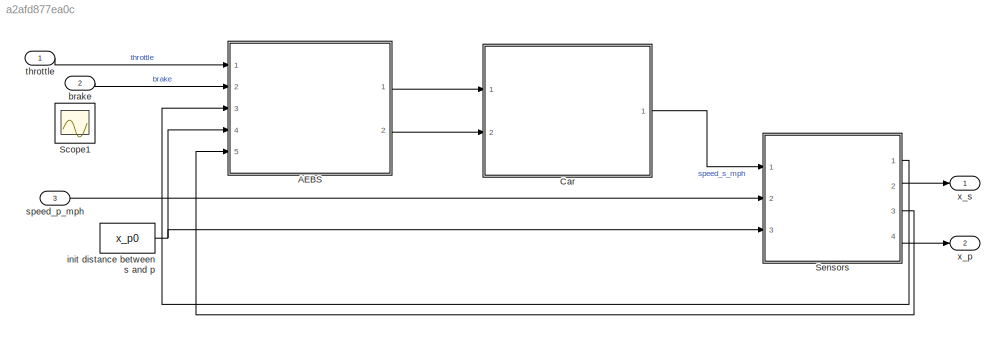
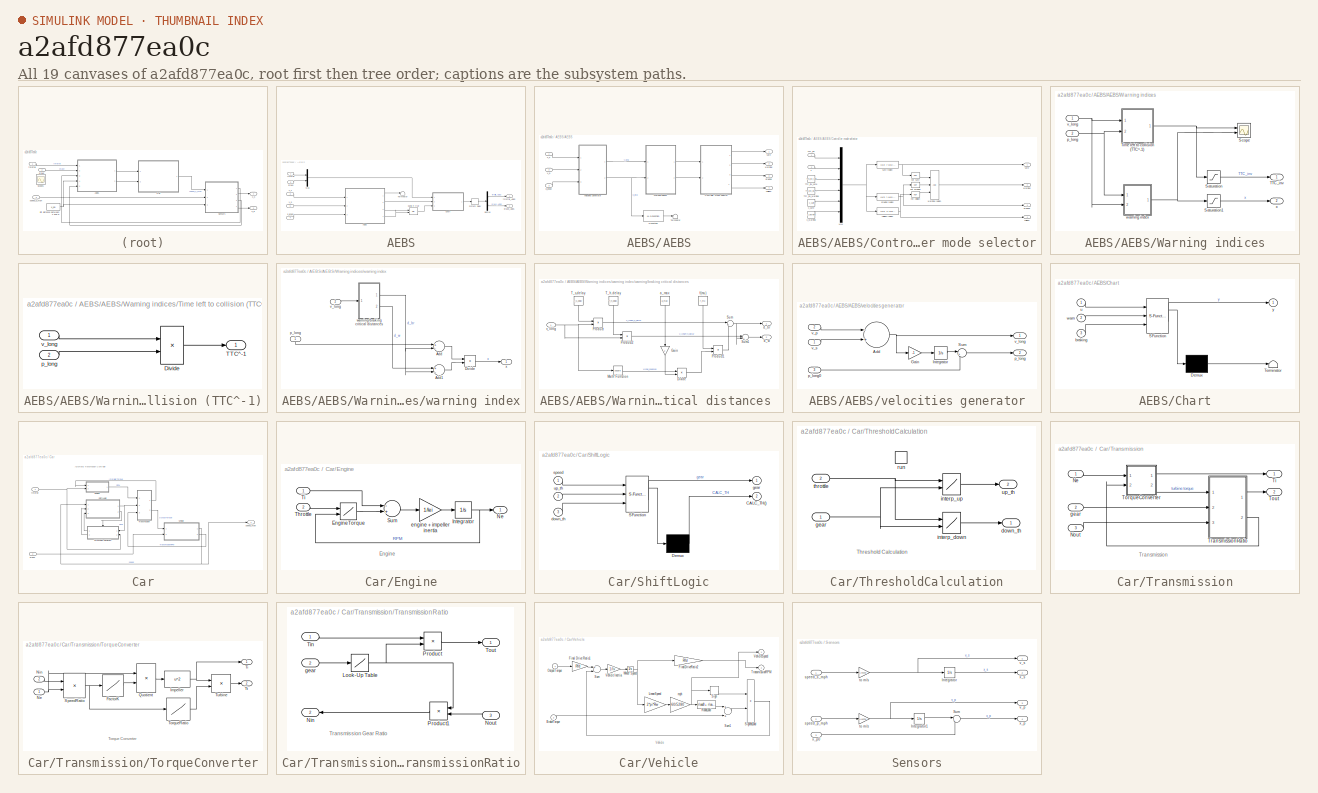
[diagram: thumbnail index - all 19 canvases of the model, root first then tree order]
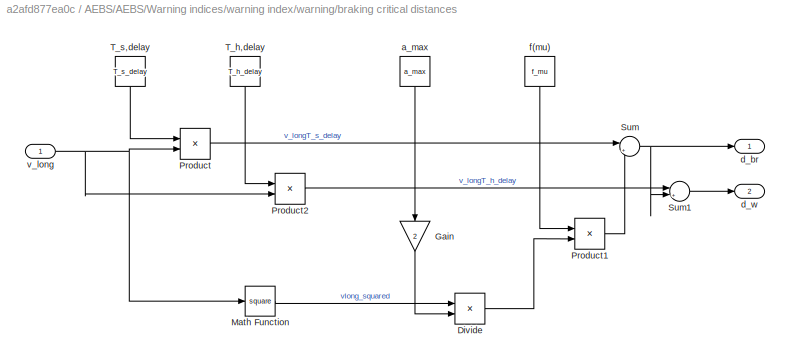
MODEL slx_a2afd877ea0c
KIND model
CONFIG AbsTol = 1e-6
CONFIG EnableMultiTasking = off
CONFIG FixedStep = .01
CONFIG MaxStep = auto
CONFIG MinStep = auto
CONFIG RelTol = 1e-3
CONFIG SampleTimeConstraint = Unconstrained
CONFIG Solver = ode5
CONFIG SolverName = ode5
CONFIG StartTime = 0.0
CONFIG StopTime = 20
WORKSPACE source: MATLAB code (in-file)
WORKSPACE code: load sldemo_autotrans_data; %load initial conditions and other necessary data
BLOCK [SubSystem] AEBS
  Ports = [5, 2]
  RequestExecContextInheritance = off
BLOCK [SubSystem] AEBS/AEBS
  Ports = [3, 4]
  RequestExecContextInheritance = off
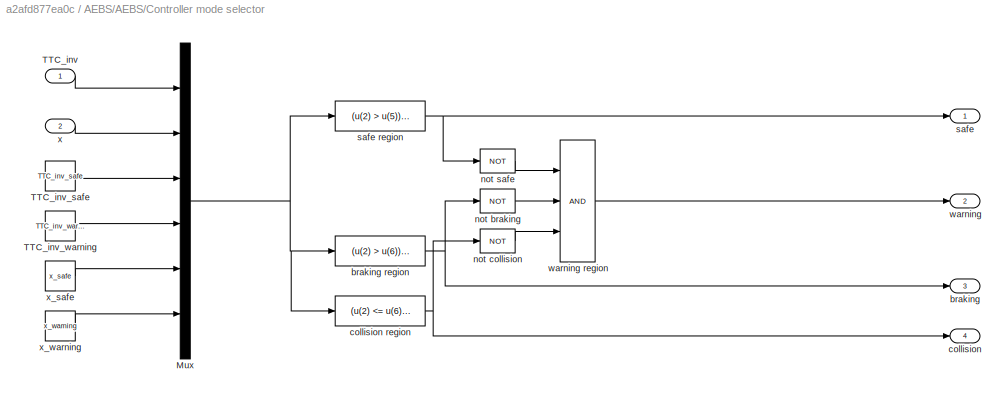
BLOCK [SubSystem] AEBS/AEBS/Controller mode selector
  Ports = [2, 4]
  RequestExecContextInheritance = off
BLOCK [Mux] AEBS/AEBS/Controller mode selector/Mux
  DisplayOption = bar
  Inputs = 6
  Ports = [6, 1]
BLOCK [Inport] AEBS/AEBS/Controller mode selector/TTC_inv
  IconDisplay = Port number
BLOCK [Constant] AEBS/AEBS/Controller mode selector/TTC_inv_safe
  Value = TTC_inv_safe
BLOCK [Constant] AEBS/AEBS/Controller mode selector/TTC_inv_warning
  Value = TTC_inv_warning
BLOCK [Outport] AEBS/AEBS/Controller mode selector/braking
  IconDisplay = Port number
  Port = 3
BLOCK [Fcn] AEBS/AEBS/Controller mode selector/braking region
  Expr = (u(2) > u(6)) && (u(1) >= u(4)) || (u(2) <= u(6)) && (u(1) < u(4))
BLOCK [Outport] AEBS/AEBS/Controller mode selector/collision
  IconDisplay = Port number
  Port = 4
BLOCK [Fcn] AEBS/AEBS/Controller mode selector/collision region
  Expr = (u(2) <= u(6)) && (u(1) >= u(4))
BLOCK [Logic] AEBS/AEBS/Controller mode selector/not braking
  AllPortsSameDT = off
  Inputs = 3
  Operator = NOT
  OutDataTypeStr = boolean
  Ports = [1, 1]
BLOCK [Logic] AEBS/AEBS/Controller mode selector/not collision
  AllPortsSameDT = off
  Inputs = 3
  Operator = NOT
  OutDataTypeStr = boolean
  Ports = [1, 1]
BLOCK [Logic] AEBS/AEBS/Controller mode selector/not safe
  AllPortsSameDT = off
  Inputs = 3
  Operator = NOT
  OutDataTypeStr = boolean
  Ports = [1, 1]
BLOCK [Outport] AEBS/AEBS/Controller mode selector/safe
  IconDisplay = Port number
BLOCK [Fcn] AEBS/AEBS/Controller mode selector/safe region
  Expr = (u(2) > u(5)) && (u(1) < u(3))
BLOCK [Outport] AEBS/AEBS/Controller mode selector/warning
  IconDisplay = Port number
  Port = 2
BLOCK [Logic] AEBS/AEBS/Controller mode selector/warning region
  AllPortsSameDT = off
  Inputs = 3
  OutDataTypeStr = boolean
  Ports = [3, 1]
BLOCK [Inport] AEBS/AEBS/Controller mode selector/x
  IconDisplay = Port number
  Port = 2
BLOCK [Constant] AEBS/AEBS/Controller mode selector/x_safe
  Value = x_safe
BLOCK [Constant] AEBS/AEBS/Controller mode selector/x_warning
  Value = x_warning
BLOCK [M-S-Function] AEBS/AEBS/S-Function
  FunctionName = outrun_anim_nn
  Parameters = 0
  Ports = [1, 1]
BLOCK [Terminator] AEBS/AEBS/Terminator
BLOCK [SubSystem] AEBS/AEBS/Warning indices
  Ports = [2, 2]
  RequestExecContextInheritance = off
BLOCK [Saturate] AEBS/AEBS/Warning indices/Saturation
  InputPortMap = u0
  LowerLimit = 0
  Ports = [1, 1]
  UpperLimit = 10
BLOCK [Saturate] AEBS/AEBS/Warning indices/Saturation1
  InputPortMap = u0
  LowerLimit = -100
  Ports = [1, 1]
  UpperLimit = 100
BLOCK [Scope] AEBS/AEBS/Warning indices/Scope
  Floating = off
  NumInputPorts = 2
  Ports = [2]
  ScopeSpecificationString = C++SS(StrPVP('Open','off'),StrPVP('TimeRange','auto'),StrPVP('TickLabels','OneTimeTick'),StrPVP('ShowLegends','off'),StrPVP('LimitDataPoints','off'),StrPVP('MaxDataPoints','5000'),StrPVP('SaveToWorkspace','off'),StrPVP('SaveName','ScopeData2'),StrPVP('YMin','-0.43546~0.71186'),StrPVP('YMax','0.0174~2.83196'),StrPVP('BlockParamSampleInput','off'),StrPVP('BlockParamSampleTime','-1'),StrPVP('ZoomMode...<+625ch>
BLOCK [Outport] AEBS/AEBS/Warning indices/TTC_inv
  IconDisplay = Port number
BLOCK [SubSystem] AEBS/AEBS/Warning indices/Time left to collision (TTC^-1)
  Ports = [2, 1]
  RequestExecContextInheritance = off
BLOCK [Product] AEBS/AEBS/Warning indices/Time left to collision (TTC^-1)/Divide
  InputSameDT = off
  Inputs = */
  OutDataTypeStr = Inherit: Inherit via internal rule
  Ports = [2, 1]
  RndMeth = Floor
  SaturateOnIntegerOverflow = off
BLOCK [Outport] AEBS/AEBS/Warning indices/Time left to collision (TTC^-1)/TTC^-1 
  IconDisplay = Port number
BLOCK [Inport] AEBS/AEBS/Warning indices/Time left to collision (TTC^-1)/p_long
  IconDisplay = Port number
  Port = 2
BLOCK [Inport] AEBS/AEBS/Warning indices/Time left to collision (TTC^-1)/v_long
  IconDisplay = Port number
BLOCK [Inport] AEBS/AEBS/Warning indices/p_long
  IconDisplay = Port number
  Port = 2
BLOCK [Inport] AEBS/AEBS/Warning indices/v_long
  IconDisplay = Port number
BLOCK [SubSystem] AEBS/AEBS/Warning indices/warning index
  Ports = [2, 1]
  RequestExecContextInheritance = off
BLOCK [Sum] AEBS/AEBS/Warning indices/warning index/Add
  InputSameDT = off
  Inputs = +-
  OutDataTypeStr = Inherit: Inherit via internal rule
  Ports = [2, 1]
  SaturateOnIntegerOverflow = off
BLOCK [Sum] AEBS/AEBS/Warning indices/warning index/Add1
  InputSameDT = off
  Inputs = +-
  OutDataTypeStr = Inherit: Inherit via internal rule
  Ports = [2, 1]
  SaturateOnIntegerOverflow = off
BLOCK [Product] AEBS/AEBS/Warning indices/warning index/Divide
  InputSameDT = off
  Inputs = */
  OutDataTypeStr = Inherit: Inherit via internal rule
  Ports = [2, 1]
  RndMeth = Floor
  SaturateOnIntegerOverflow = off
BLOCK [Inport] AEBS/AEBS/Warning indices/warning index/p_long
  IconDisplay = Port number
BLOCK [Inport] AEBS/AEBS/Warning indices/warning index/v_long
  IconDisplay = Port number
  Port = 2
BLOCK [SubSystem] AEBS/AEBS/Warning indices/warning index/warning//braking critical distances 
  Ports = [1, 2]
  RequestExecContextInheritance = off
BLOCK [Product] AEBS/AEBS/Warning indices/warning index/warning//braking critical distances /Divide
  InputSameDT = off
  Inputs = */
  OutDataTypeStr = Inherit: Inherit via internal rule
  Ports = [2, 1]
  RndMeth = Floor
  SaturateOnIntegerOverflow = off
BLOCK [Gain] AEBS/AEBS/Warning indices/warning index/warning//braking critical distances /Gain
  Gain = 2
  OutDataTypeStr = Inherit: Inherit via internal rule
  ParamDataTypeStr = Inherit: Inherit via internal rule
  SaturateOnIntegerOverflow = off
BLOCK [Math] AEBS/AEBS/Warning indices/warning index/warning//braking critical distances /Math Function
  Operator = square
  Ports = [1, 1]
BLOCK [Product] AEBS/AEBS/Warning indices/warning index/warning//braking critical distances /Product
  InputSameDT = off
  OutDataTypeStr = Inherit: Inherit via internal rule
  Ports = [2, 1]
  RndMeth = Floor
  SaturateOnIntegerOverflow = off
BLOCK [Product] AEBS/AEBS/Warning indices/warning index/warning//braking critical distances /Product1
  InputSameDT = off
  OutDataTypeStr = Inherit: Inherit via internal rule
  Ports = [2, 1]
  RndMeth = Floor
  SaturateOnIntegerOverflow = off
BLOCK [Product] AEBS/AEBS/Warning indices/warning index/warning//braking critical distances /Product2
  InputSameDT = off
  OutDataTypeStr = Inherit: Inherit via internal rule
  Ports = [2, 1]
  RndMeth = Floor
  SaturateOnIntegerOverflow = off
BLOCK [Sum] AEBS/AEBS/Warning indices/warning index/warning//braking critical distances /Sum
  IconShape = round
  InputSameDT = off
  Inputs = |++
  OutDataTypeStr = Inherit: Inherit via internal rule
  Ports = [2, 1]
  SaturateOnIntegerOverflow = off
BLOCK [Sum] AEBS/AEBS/Warning indices/warning index/warning//braking critical distances /Sum1
  IconShape = round
  InputSameDT = off
  Inputs = |++
  OutDataTypeStr = Inherit: Inherit via internal rule
  Ports = [2, 1]
  SaturateOnIntegerOverflow = off
BLOCK [Constant] AEBS/AEBS/Warning indices/warning index/warning//braking critical distances /T_h,delay
  Value = T_h_delay
BLOCK [Constant] AEBS/AEBS/Warning indices/warning index/warning//braking critical distances /T_s,delay
  Value = T_s_delay
BLOCK [Constant] AEBS/AEBS/Warning indices/warning index/warning//braking critical distances /a_max
  Value = a_max
BLOCK [Outport] AEBS/AEBS/Warning indices/warning index/warning//braking critical distances /d_br
  IconDisplay = Port number
BLOCK [Outport] AEBS/AEBS/Warning indices/warning index/warning//braking critical distances /d_w
  IconDisplay = Port number
  Port = 2
BLOCK [Constant] AEBS/AEBS/Warning indices/warning index/warning//braking critical distances /f(mu)
  Value = f_mu
BLOCK [Inport] AEBS/AEBS/Warning indices/warning index/warning//braking critical distances /v_long 
  IconDisplay = Port number
BLOCK [Outport] AEBS/AEBS/Warning indices/warning index/x 
  IconDisplay = Port number
BLOCK [Outport] AEBS/AEBS/Warning indices/x
  IconDisplay = Port number
  Port = 2
BLOCK [Outport] AEBS/AEBS/braking
  IconDisplay = Port number
  Port = 3
BLOCK [Outport] AEBS/AEBS/collision
  IconDisplay = Port number
  Port = 4
BLOCK [Inport] AEBS/AEBS/p_long0
  IconDisplay = Port number
  Port = 3
BLOCK [Outport] AEBS/AEBS/safe
  IconDisplay = Port number
BLOCK [Inport] AEBS/AEBS/v_p
  IconDisplay = Port number
  Port = 2
BLOCK [Inport] AEBS/AEBS/v_s
  IconDisplay = Port number
BLOCK [SubSystem] AEBS/AEBS/velocities generator
  Ports = [3, 2]
  RequestExecContextInheritance = off
BLOCK [Sum] AEBS/AEBS/velocities generator/Add
  InputSameDT = off
  Inputs = -+
  OutDataTypeStr = Inherit: Inherit via internal rule
  Ports = [2, 1]
  SaturateOnIntegerOverflow = off
BLOCK [Gain] AEBS/AEBS/velocities generator/Gain
  Gain = -1
  OutDataTypeStr = Inherit: Inherit via internal rule
  ParamDataTypeStr = Inherit: Inherit via internal rule
  SaturateOnIntegerOverflow = off
BLOCK [Integrator] AEBS/AEBS/velocities generator/Integrator
  Ports = [1, 1]
BLOCK [Sum] AEBS/AEBS/velocities generator/Sum
  IconShape = round
  InputSameDT = off
  Inputs = |++
  OutDataTypeStr = Inherit: Inherit via internal rule
  Ports = [2, 1]
  SaturateOnIntegerOverflow = off
BLOCK [Outport] AEBS/AEBS/velocities generator/p_long
  IconDisplay = Port number
  Port = 2
BLOCK [Inport] AEBS/AEBS/velocities generator/p_long0
  IconDisplay = Port number
  Port = 3
BLOCK [Outport] AEBS/AEBS/velocities generator/v_long
  IconDisplay = Port number
BLOCK [Inport] AEBS/AEBS/velocities generator/v_p
  IconDisplay = Port number
  Port = 2
BLOCK [Inport] AEBS/AEBS/velocities generator/v_s
  IconDisplay = Port number
BLOCK [Outport] AEBS/AEBS/warning
  IconDisplay = Port number
  Port = 2
BLOCK [SubSystem] AEBS/Chart
  ErrorFcn = Stateflow.Translate.translate
  PermitHierarchicalResolution = ExplicitOnly
  Ports = [3, 1]
  RequestExecContextInheritance = off
  SFBlockType = Chart
  TreatAsAtomicUnit = on
BLOCK [Demux] AEBS/Chart/ Demux 
  Outputs = 1
  Ports = [1, 1]
BLOCK [S-Function] AEBS/Chart/ SFunction 
  EnableBusSupport = off
  FunctionName = sf_sfun
  Parameters = panic_brake,warn_brake
  PortCounts = [3 2]
  Ports = [3, 2]
  SFcnIsStateOwnerBlock = off
  SFunctionDeploymentMode = off
  Tag = Stateflow S-Function outrun_nn_breach 3
BLOCK [Terminator] AEBS/Chart/ Terminator 
BLOCK [Inport] AEBS/Chart/braking
  IconDisplay = Port number
  Port = 3
BLOCK [Inport] AEBS/Chart/u
  IconDisplay = Port number
BLOCK [Inport] AEBS/Chart/warn
  IconDisplay = Port number
  Port = 2
BLOCK [Outport] AEBS/Chart/y
  IconDisplay = Port number
BLOCK [Demux] AEBS/Demux
  DisplayOption = bar
  Outputs = 2
  Ports = [1, 2]
BLOCK [Mux] AEBS/Mux
  DisplayOption = bar
  Inputs = 2
  Ports = [2, 1]
BLOCK [TransportDelay] AEBS/System Delay 
  DelayTime = T_s_delay
  Ports = [1, 1]
BLOCK [Terminator] AEBS/Terminator
BLOCK [Inport] AEBS/brake
  IconDisplay = Port number
  Port = 2
BLOCK [Outport] AEBS/brake_AEBS
  IconDisplay = Port number
  Port = 2
BLOCK [Inport] AEBS/p_long0
  IconDisplay = Port number
  Port = 4
BLOCK [Logic] AEBS/panic if true
  AllPortsSameDT = off
  IconShape = distinctive
  Operator = OR
  OutDataTypeStr = boolean
  Ports = [2, 1]
BLOCK [Inport] AEBS/throttle
  IconDisplay = Port number
BLOCK [Outport] AEBS/throttle_AEBS
  IconDisplay = Port number
BLOCK [Inport] AEBS/v_p
  IconDisplay = Port number
  Port = 5
BLOCK [Inport] AEBS/v_s
  IconDisplay = Port number
  Port = 3
BLOCK [SubSystem] Car
  Ports = [2, 1]
  RequestExecContextInheritance = off
BLOCK [SubSystem] Car/Engine
  Ports = [2, 1]
  RequestExecContextInheritance = off
BLOCK [Lookup2D] Car/Engine/EngineTorque
  ColumnIndex = nevec
  RowIndex = thvec
  SaturateOnIntegerOverflow = off
  Table = emap
BLOCK [Integrator] Car/Engine/Integrator
  InitialCondition = 1000
  LimitOutput = on
  LowerSaturationLimit = 600
  Ports = [1, 1]
  UpperSaturationLimit = 6000
  ZeroCross = off
BLOCK [Outport] Car/Engine/Ne
  IconDisplay = Port number
  InitialOutput = 0
BLOCK [Sum] Car/Engine/Sum
  Inputs = -+
  Ports = [2, 1]
BLOCK [Inport] Car/Engine/Throttle
  IconDisplay = Port number
  Port = 2
BLOCK [Inport] Car/Engine/Ti
  IconDisplay = Port number
BLOCK [Gain] Car/Engine/engine + impeller inertia
  Gain = 1/Iei
BLOCK [SubSystem] Car/ShiftLogic
  ErrorFcn = Stateflow.Translate.translate
  PermitHierarchicalResolution = ExplicitOnly
  Ports = [3, 2]
  RequestExecContextInheritance = off
  SFBlockType = Chart
  TreatAsAtomicUnit = on
BLOCK [Demux] Car/ShiftLogic/ Demux 
  Outputs = 1
  Ports = [1, 1]
BLOCK [S-Function] Car/ShiftLogic/ SFunction 
  EnableBusSupport = off
  FunctionName = sf_sfun
  Parameters = TWAIT
  PortCounts = [3 2]
  Ports = [3, 2]
  SFcnIsStateOwnerBlock = off
  SFunctionDeploymentMode = off
  Tag = Stateflow S-Function outrun_nn_breach 1
BLOCK [Outport] Car/ShiftLogic/CALC_TH()
  IconDisplay = Port number
  Port = 2
BLOCK [Inport] Car/ShiftLogic/down_th
  IconDisplay = Port number
  Port = 3
BLOCK [Outport] Car/ShiftLogic/gear
  IconDisplay = Port number
BLOCK [Inport] Car/ShiftLogic/speed
  IconDisplay = Port number
BLOCK [Inport] Car/ShiftLogic/up_th
  IconDisplay = Port number
  Port = 2
BLOCK [SubSystem] Car/ThresholdCalculation
  Ports = [2, 2, 0, 1]
  RequestExecContextInheritance = off
  TreatAsAtomicUnit = on
BLOCK [Outport] Car/ThresholdCalculation/down_th
  IconDisplay = Port number
BLOCK [Inport] Car/ThresholdCalculation/gear
  IconDisplay = Port number
BLOCK [Lookup2D] Car/ThresholdCalculation/interp_down
  ColumnIndex = [1:4]
  InputSameDT = off
  LockScale = on
  OutDataTypeStr = double
  RowIndex = downth
  SaturateOnIntegerOverflow = off
  Table = downtab
BLOCK [Lookup2D] Car/ThresholdCalculation/interp_up
  ColumnIndex = [1:4]
  InputSameDT = off
  LockScale = on
  OutDataTypeStr = double
  RowIndex = upth
  SaturateOnIntegerOverflow = off
  Table = uptab
BLOCK [TriggerPort] Car/ThresholdCalculation/run
  Ports = []
  TriggerType = function-call
  VariantControl = Variant
  ZeroCross = off
BLOCK [Inport] Car/ThresholdCalculation/throttle
  IconDisplay = Port number
  Port = 2
BLOCK [Outport] Car/ThresholdCalculation/up_th
  IconDisplay = Port number
  Port = 2
BLOCK [SubSystem] Car/Transmission
  Ports = [3, 2]
  RequestExecContextInheritance = off
BLOCK [Inport] Car/Transmission/Ne
  IconDisplay = Port number
BLOCK [Inport] Car/Transmission/Nout
  IconDisplay = Port number
  Port = 3
BLOCK [Outport] Car/Transmission/Ti
  IconDisplay = Port number
  InitialOutput = 0
BLOCK [SubSystem] Car/Transmission/TorqueConverter
  Ports = [2, 2]
  RequestExecContextInheritance = off
  ShowPortLabels = none
BLOCK [Lookup] Car/Transmission/TorqueConverter/FactorK
  InputValues = speedratio
  Table = Kfactor
BLOCK [Fcn] Car/Transmission/TorqueConverter/Impeller
  Expr = u^2
BLOCK [Inport] Car/Transmission/TorqueConverter/Ne
  IconDisplay = Port number
BLOCK [Inport] Car/Transmission/TorqueConverter/Nin
  IconDisplay = Port number
  Port = 2
BLOCK [Product] Car/Transmission/TorqueConverter/Quotient
  Inputs = */
  Ports = [2, 1]
  RndMeth = Floor
BLOCK [Product] Car/Transmission/TorqueConverter/SpeedRatio
  Inputs = */
  Ports = [2, 1]
  RndMeth = Floor
BLOCK [Outport] Car/Transmission/TorqueConverter/Ti
  IconDisplay = Port number
  InitialOutput = 0
BLOCK [Lookup] Car/Transmission/TorqueConverter/TorqueRatio
  InputValues = speedratio
  Table = Torkratio
BLOCK [Outport] Car/Transmission/TorqueConverter/Tt
  IconDisplay = Port number
  InitialOutput = 0
  Port = 2
BLOCK [Product] Car/Transmission/TorqueConverter/Turbine
  Ports = [2, 1]
  RndMeth = Floor
BLOCK [Outport] Car/Transmission/Tout
  IconDisplay = Port number
  InitialOutput = 0
  Port = 2
BLOCK [SubSystem] Car/Transmission/TransmissionRatio
  Ports = [3, 2]
  RequestExecContextInheritance = off
BLOCK [Lookup] Car/Transmission/TransmissionRatio/Look-Up Table
  InputValues = [1 2 3 4]
  LockScale = on
  OutDataTypeStr = double
  Table = [2.393 1.450 1.000 0.677]
BLOCK [Outport] Car/Transmission/TransmissionRatio/Nin
  IconDisplay = Port number
  InitialOutput = 0
  Port = 2
BLOCK [Inport] Car/Transmission/TransmissionRatio/Nout
  IconDisplay = Port number
  Port = 3
BLOCK [Product] Car/Transmission/TransmissionRatio/Product
  Ports = [2, 1]
  RndMeth = Floor
BLOCK [Product] Car/Transmission/TransmissionRatio/Product1
  Ports = [2, 1]
  RndMeth = Floor
BLOCK [Inport] Car/Transmission/TransmissionRatio/Tin
  IconDisplay = Port number
BLOCK [Outport] Car/Transmission/TransmissionRatio/Tout
  IconDisplay = Port number
  InitialOutput = 0
BLOCK [Inport] Car/Transmission/TransmissionRatio/gear
  IconDisplay = Port number
  Port = 2
BLOCK [Inport] Car/Transmission/gear
  IconDisplay = Port number
  Port = 2
BLOCK [SubSystem] Car/Vehicle
  Ports = [2, 2]
  RequestExecContextInheritance = off
  ShowPortLabels = none
BLOCK [Inport] Car/Vehicle/BrakeTorque
  IconDisplay = Port number
  Port = 2
BLOCK [Gain] Car/Vehicle/Final Drive Ratio1
  Gain = Rfd
BLOCK [Gain] Car/Vehicle/FinalDriveRatio2
  Gain = Rfd
BLOCK [Gain] Car/Vehicle/LinearSpeed
  Gain = 2*pi*Rw
BLOCK [Inport] Car/Vehicle/OutputTorque
  IconDisplay = Port number
BLOCK [Fcn] Car/Vehicle/RoadLoad
  Expr = rload0 + rload2*u^2
BLOCK [Signum] Car/Vehicle/Sign
BLOCK [Product] Car/Vehicle/SignedLoad
  Ports = [2, 1]
  RndMeth = Floor
BLOCK [Sum] Car/Vehicle/Sum
  Inputs = +-
  Ports = [2, 1]
BLOCK [Sum] Car/Vehicle/Sum1
  Ports = [2, 1]
BLOCK [Outport] Car/Vehicle/TransmissionRPM
  IconDisplay = Port number
  InitialOutput = 0
  Port = 2
BLOCK [Gain] Car/Vehicle/Vehicle Inertia
  Gain = 1/Iv
BLOCK [Outport] Car/Vehicle/VehicleSpeed
  IconDisplay = Port number
  InitialOutput = 0
BLOCK [Integrator] Car/Vehicle/Wheel Speed
  InitialCondition = N20/Rfd
  Ports = [1, 1]
  ZeroCross = off
BLOCK [Gain] Car/Vehicle/mph
  Gain = 60/5280
BLOCK [Inport] Car/brake
  IconDisplay = Port number
  Interpolate = off
  Port = 2
BLOCK [Outport] Car/speed_mph
  IconDisplay = Port number
BLOCK [Inport] Car/throttle
  IconDisplay = Port number
  Interpolate = off
BLOCK [Scope] Scope1
  Floating = off
  IOType = viewer
  NumInputPorts = 1
  Ports = []
  ScopeSpecificationString = Simulink.scopes.TimeScopeBlockCfg('CurrentConfiguration', extmgr.ConfigurationSet(extmgr.Configuration('Core','General UI',true,'FigureColor',[0.156862745098039 0.156862745098039 0.156862745098039]),extmgr.Configuration('Core','Source UI',true),extmgr.Configuration('Sources','WiredSimulink',true,'DataLoggingLimitDataPoints',true,'DataLoggingMaxPoints','7500','DataLoggingSaveFormat','Array','DataLo...<+2793ch>
BLOCK [SubSystem] Sensors
  Ports = [3, 4]
  RequestExecContextInheritance = off
BLOCK [Gain] Sensors/ to m//s
  Gain = 0.44704
  OutDataTypeStr = Inherit: Inherit via internal rule
  ParamDataTypeStr = Inherit: Inherit via internal rule
  SaturateOnIntegerOverflow = off
BLOCK [Integrator] Sensors/Integrator
  Ports = [1, 1]
BLOCK [Integrator] Sensors/Integrator1
  Ports = [1, 1]
BLOCK [Sum] Sensors/Sum
  IconShape = round
  InputSameDT = off
  Inputs = |++
  OutDataTypeStr = Inherit: Inherit via internal rule
  Ports = [2, 1]
  SaturateOnIntegerOverflow = off
BLOCK [Inport] Sensors/speed_p_mph
  IconDisplay = Port number
  Port = 2
BLOCK [Inport] Sensors/speed_s_mph
  IconDisplay = Port number
BLOCK [Gain] Sensors/to m//s
  Gain = 0.44704
  OutDataTypeStr = Inherit: Inherit via internal rule
  ParamDataTypeStr = Inherit: Inherit via internal rule
  SaturateOnIntegerOverflow = off
BLOCK [Outport] Sensors/v_p
  IconDisplay = Port number
  Port = 3
BLOCK [Outport] Sensors/v_s
  IconDisplay = Port number
BLOCK [Outport] Sensors/x_p
  IconDisplay = Port number
  Port = 4
BLOCK [Inport] Sensors/x_p0
  IconDisplay = Port number
  Port = 3
BLOCK [Outport] Sensors/x_s
  IconDisplay = Port number
  Port = 2
BLOCK [Inport] brake
  IconDisplay = Port number
  Interpolate = off
  Port = 2
BLOCK [Constant] init distance between s and p
  Value = x_p0
BLOCK [Inport] speed_p_mph
  IconDisplay = Port number
  Interpolate = off
  Port = 3
BLOCK [Inport] throttle
  IconDisplay = Port number
  Interpolate = off
BLOCK [Outport] x_p
  IconDisplay = Port number
  Port = 2
BLOCK [Outport] x_s
  IconDisplay = Port number
ANNOTATION Car: Automatic Transmission Controller
ANNOTATION Car/Engine: Engine
ANNOTATION Car/ThresholdCalculation: Threshold Calculation
ANNOTATION Car/Transmission: Transmission
ANNOTATION Car/Transmission/TorqueConverter: Torque Converter
ANNOTATION Car/Transmission/TransmissionRatio: Transmission Gear Ratio
ANNOTATION Car/Vehicle: Vehicle
NET AEBS/AEBS/Controller mode selector/Mux:1 -> AEBS/AEBS/Controller mode selector/braking region:1, AEBS/AEBS/Controller mode selector/collision region:1, AEBS/AEBS/Controller mode selector/safe region:1
LINE AEBS/AEBS/Controller mode selector/TTC_inv:1 -> AEBS/AEBS/Controller mode selector/Mux:1
LINE AEBS/AEBS/Controller mode selector/TTC_inv_safe:1 -> AEBS/AEBS/Controller mode selector/Mux:3
LINE AEBS/AEBS/Controller mode selector/TTC_inv_warning:1 -> AEBS/AEBS/Controller mode selector/Mux:4
NET AEBS/AEBS/Controller mode selector/braking region:1 -> AEBS/AEBS/Controller mode selector/braking:1, AEBS/AEBS/Controller mode selector/not braking:1
NET AEBS/AEBS/Controller mode selector/collision region:1 -> AEBS/AEBS/Controller mode selector/collision:1, AEBS/AEBS/Controller mode selector/not collision:1
LINE AEBS/AEBS/Controller mode selector/not braking:1 -> AEBS/AEBS/Controller mode selector/warning region:2
LINE AEBS/AEBS/Controller mode selector/not collision:1 -> AEBS/AEBS/Controller mode selector/warning region:3
LINE AEBS/AEBS/Controller mode selector/not safe:1 -> AEBS/AEBS/Controller mode selector/warning region:1
NET AEBS/AEBS/Controller mode selector/safe region:1 -> AEBS/AEBS/Controller mode selector/not safe:1, AEBS/AEBS/Controller mode selector/safe:1
LINE AEBS/AEBS/Controller mode selector/warning region:1 -> AEBS/AEBS/Controller mode selector/warning:1
LINE AEBS/AEBS/Controller mode selector/x:1 -> AEBS/AEBS/Controller mode selector/Mux:2
LINE AEBS/AEBS/Controller mode selector/x_safe:1 -> AEBS/AEBS/Controller mode selector/Mux:5
LINE AEBS/AEBS/Controller mode selector/x_warning:1 -> AEBS/AEBS/Controller mode selector/Mux:6
LINE AEBS/AEBS/Controller mode selector:1 -> AEBS/AEBS/safe:1
LINE AEBS/AEBS/Controller mode selector:2 -> AEBS/AEBS/warning:1
LINE AEBS/AEBS/Controller mode selector:3 -> AEBS/AEBS/braking:1
LINE AEBS/AEBS/Controller mode selector:4 -> AEBS/AEBS/collision:1
LINE AEBS/AEBS/S-Function:1 -> AEBS/AEBS/Terminator:1
LINE AEBS/AEBS/Warning indices/Saturation1:1 -> AEBS/AEBS/Warning indices/x:1
LINE AEBS/AEBS/Warning indices/Saturation:1 -> AEBS/AEBS/Warning indices/TTC_inv:1
LINE AEBS/AEBS/Warning indices/Time left to collision (TTC^-1)/Divide:1 -> AEBS/AEBS/Warning indices/Time left to collision (TTC^-1)/TTC^-1 :1
LINE AEBS/AEBS/Warning indices/Time left to collision (TTC^-1)/p_long:1 -> AEBS/AEBS/Warning indices/Time left to collision (TTC^-1)/Divide:2
LINE AEBS/AEBS/Warning indices/Time left to collision (TTC^-1)/v_long:1 -> AEBS/AEBS/Warning indices/Time left to collision (TTC^-1)/Divide:1
NET AEBS/AEBS/Warning indices/Time left to collision (TTC^-1):1 -> AEBS/AEBS/Warning indices/Saturation:1, AEBS/AEBS/Warning indices/Scope:1
NET AEBS/AEBS/Warning indices/p_long:1 -> AEBS/AEBS/Warning indices/Time left to collision (TTC^-1):2, AEBS/AEBS/Warning indices/warning index:1
NET AEBS/AEBS/Warning indices/v_long:1 -> AEBS/AEBS/Warning indices/Time left to collision (TTC^-1):1, AEBS/AEBS/Warning indices/warning index:2
LINE AEBS/AEBS/Warning indices/warning index/Add1:1 -> AEBS/AEBS/Warning indices/warning index/Divide:2
LINE AEBS/AEBS/Warning indices/warning index/Add:1 -> AEBS/AEBS/Warning indices/warning index/Divide:1
LINE AEBS/AEBS/Warning indices/warning index/Divide:1 -> AEBS/AEBS/Warning indices/warning index/x :1
LINE AEBS/AEBS/Warning indices/warning index/p_long:1 -> AEBS/AEBS/Warning indices/warning index/Add:1
LINE AEBS/AEBS/Warning indices/warning index/v_long:1 -> AEBS/AEBS/Warning indices/warning index/warning//braking critical distances :1
LINE AEBS/AEBS/Warning indices/warning index/warning//braking critical distances /Divide:1 -> AEBS/AEBS/Warning indices/warning index/warning//braking critical distances /Product1:2
LINE AEBS/AEBS/Warning indices/warning index/warning//braking critical distances /Gain:1 -> AEBS/AEBS/Warning indices/warning index/warning//braking critical distances /Divide:2
LINE AEBS/AEBS/Warning indices/warning index/warning//braking critical distances /Math Function:1 -> AEBS/AEBS/Warning indices/warning index/warning//braking critical distances /Divide:1
LINE AEBS/AEBS/Warning indices/warning index/warning//braking critical distances /Product1:1 -> AEBS/AEBS/Warning indices/warning index/warning//braking critical distances /Sum:2
LINE AEBS/AEBS/Warning indices/warning index/warning//braking critical distances /Product2:1 -> AEBS/AEBS/Warning indices/warning index/warning//braking critical distances /Sum1:1
LINE AEBS/AEBS/Warning indices/warning index/warning//braking critical distances /Product:1 -> AEBS/AEBS/Warning indices/warning index/warning//braking critical distances /Sum:1
LINE AEBS/AEBS/Warning indices/warning index/warning//braking critical distances /Sum1:1 -> AEBS/AEBS/Warning indices/warning index/warning//braking critical distances /d_w:1
NET AEBS/AEBS/Warning indices/warning index/warning//braking critical distances /Sum:1 -> AEBS/AEBS/Warning indices/warning index/warning//braking critical distances /Sum1:2, AEBS/AEBS/Warning indices/warning index/warning//braking critical distances /d_br:1
LINE AEBS/AEBS/Warning indices/warning index/warning//braking critical distances /T_h,delay:1 -> AEBS/AEBS/Warning indices/warning index/warning//braking critical distances /Product2:1
LINE AEBS/AEBS/Warning indices/warning index/warning//braking critical distances /T_s,delay:1 -> AEBS/AEBS/Warning indices/warning index/warning//braking critical distances /Product:1
LINE AEBS/AEBS/Warning indices/warning index/warning//braking critical distances /a_max:1 -> AEBS/AEBS/Warning indices/warning index/warning//braking critical distances /Gain:1
LINE AEBS/AEBS/Warning indices/warning index/warning//braking critical distances /f(mu):1 -> AEBS/AEBS/Warning indices/warning index/warning//braking critical distances /Product1:1
NET AEBS/AEBS/Warning indices/warning index/warning//braking critical distances /v_long :1 -> AEBS/AEBS/Warning indices/warning index/warning//braking critical distances /Math Function:1, AEBS/AEBS/Warning indices/warning index/warning//braking critical distances /Product2:2, AEBS/AEBS/Warning indices/warning index/warning//braking critical distances /Product:2
NET AEBS/AEBS/Warning indices/warning index/warning//braking critical distances :1 -> AEBS/AEBS/Warning indices/warning index/Add1:2, AEBS/AEBS/Warning indices/warning index/Add:2
LINE AEBS/AEBS/Warning indices/warning index/warning//braking critical distances :2 -> AEBS/AEBS/Warning indices/warning index/Add1:1
NET AEBS/AEBS/Warning indices/warning index:1 -> AEBS/AEBS/Warning indices/Saturation1:1, AEBS/AEBS/Warning indices/Scope:2
LINE AEBS/AEBS/Warning indices:1 -> AEBS/AEBS/Controller mode selector:1
LINE AEBS/AEBS/Warning indices:2 -> AEBS/AEBS/Controller mode selector:2
LINE AEBS/AEBS/p_long0:1 -> AEBS/AEBS/velocities generator:3
LINE AEBS/AEBS/v_p:1 -> AEBS/AEBS/velocities generator:2
LINE AEBS/AEBS/v_s:1 -> AEBS/AEBS/velocities generator:1
NET AEBS/AEBS/velocities generator/Add:1 -> AEBS/AEBS/velocities generator/Gain:1, AEBS/AEBS/velocities generator/v_long:1
LINE AEBS/AEBS/velocities generator/Gain:1 -> AEBS/AEBS/velocities generator/Integrator:1
LINE AEBS/AEBS/velocities generator/Integrator:1 -> AEBS/AEBS/velocities generator/Sum:1
LINE AEBS/AEBS/velocities generator/Sum:1 -> AEBS/AEBS/velocities generator/p_long:1
LINE AEBS/AEBS/velocities generator/p_long0:1 -> AEBS/AEBS/velocities generator/Sum:2
LINE AEBS/AEBS/velocities generator/v_p:1 -> AEBS/AEBS/velocities generator/Add:1
LINE AEBS/AEBS/velocities generator/v_s:1 -> AEBS/AEBS/velocities generator/Add:2
LINE AEBS/AEBS/velocities generator:1 -> AEBS/AEBS/Warning indices:1
NET AEBS/AEBS/velocities generator:2 -> AEBS/AEBS/S-Function:1, AEBS/AEBS/Warning indices:2
LINE AEBS/AEBS:1 -> AEBS/Terminator:1
LINE AEBS/AEBS:2 -> AEBS/Chart:2
LINE AEBS/AEBS:3 -> AEBS/panic if true:1
LINE AEBS/AEBS:4 -> AEBS/panic if true:2
LINE AEBS/Chart:1 -> AEBS/System Delay :1
LINE AEBS/Demux:1 -> AEBS/throttle_AEBS:1
LINE AEBS/Demux:2 -> AEBS/brake_AEBS:1
LINE AEBS/Mux:1 -> AEBS/Chart:1
LINE AEBS/System Delay :1 -> AEBS/Demux:1
LINE AEBS/brake:1 -> AEBS/Mux:2
LINE AEBS/p_long0:1 -> AEBS/AEBS:3
LINE AEBS/panic if true:1 -> AEBS/Chart:3
LINE AEBS/throttle:1 -> AEBS/Mux:1
LINE AEBS/v_p:1 -> AEBS/AEBS:2
LINE AEBS/v_s:1 -> AEBS/AEBS:1
LINE AEBS:1 -> Car:1
LINE AEBS:2 -> Car:2
LINE Car/Engine/EngineTorque:1 -> Car/Engine/Sum:2
NET Car/Engine/Integrator:1 -> Car/Engine/EngineTorque:2, Car/Engine/Ne:1
LINE Car/Engine/Sum:1 -> Car/Engine/engine + impeller inertia:1
LINE Car/Engine/Throttle:1 -> Car/Engine/EngineTorque:1
LINE Car/Engine/Ti:1 -> Car/Engine/Sum:1
LINE Car/Engine/engine + impeller inertia:1 -> Car/Engine/Integrator:1
LINE Car/Engine:1 -> Car/Transmission:1
NET Car/ShiftLogic:1 -> Car/ThresholdCalculation:1, Car/Transmission:2
LINE Car/ShiftLogic:2 -> Car/ThresholdCalculation:trigger
NET Car/ThresholdCalculation/gear:1 -> Car/ThresholdCalculation/interp_down:2, Car/ThresholdCalculation/interp_up:2
LINE Car/ThresholdCalculation/interp_down:1 -> Car/ThresholdCalculation/down_th:1
LINE Car/ThresholdCalculation/interp_up:1 -> Car/ThresholdCalculation/up_th:1
NET Car/ThresholdCalculation/throttle:1 -> Car/ThresholdCalculation/interp_down:1, Car/ThresholdCalculation/interp_up:1
LINE Car/ThresholdCalculation:1 -> Car/ShiftLogic:3
LINE Car/ThresholdCalculation:2 -> Car/ShiftLogic:2
LINE Car/Transmission/Ne:1 -> Car/Transmission/TorqueConverter:1
LINE Car/Transmission/Nout:1 -> Car/Transmission/TransmissionRatio:3
LINE Car/Transmission/TorqueConverter/FactorK:1 -> Car/Transmission/TorqueConverter/Quotient:2
NET Car/Transmission/TorqueConverter/Impeller:1 -> Car/Transmission/TorqueConverter/Ti:1, Car/Transmission/TorqueConverter/Turbine:1
NET Car/Transmission/TorqueConverter/Ne:1 -> Car/Transmission/TorqueConverter/Quotient:1, Car/Transmission/TorqueConverter/SpeedRatio:2
LINE Car/Transmission/TorqueConverter/Nin:1 -> Car/Transmission/TorqueConverter/SpeedRatio:1
LINE Car/Transmission/TorqueConverter/Quotient:1 -> Car/Transmission/TorqueConverter/Impeller:1
NET Car/Transmission/TorqueConverter/SpeedRatio:1 -> Car/Transmission/TorqueConverter/FactorK:1, Car/Transmission/TorqueConverter/TorqueRatio:1
LINE Car/Transmission/TorqueConverter/TorqueRatio:1 -> Car/Transmission/TorqueConverter/Turbine:2
LINE Car/Transmission/TorqueConverter/Turbine:1 -> Car/Transmission/TorqueConverter/Tt:1
LINE Car/Transmission/TorqueConverter:1 -> Car/Transmission/Ti:1
LINE Car/Transmission/TorqueConverter:2 -> Car/Transmission/TransmissionRatio:1
NET Car/Transmission/TransmissionRatio/Look-Up Table:1 -> Car/Transmission/TransmissionRatio/Product1:1, Car/Transmission/TransmissionRatio/Product:2
LINE Car/Transmission/TransmissionRatio/Nout:1 -> Car/Transmission/TransmissionRatio/Product1:2
LINE Car/Transmission/TransmissionRatio/Product1:1 -> Car/Transmission/TransmissionRatio/Nin:1
LINE Car/Transmission/TransmissionRatio/Product:1 -> Car/Transmission/TransmissionRatio/Tout:1
LINE Car/Transmission/TransmissionRatio/Tin:1 -> Car/Transmission/TransmissionRatio/Product:1
LINE Car/Transmission/TransmissionRatio/gear:1 -> Car/Transmission/TransmissionRatio/Look-Up Table:1
LINE Car/Transmission/TransmissionRatio:1 -> Car/Transmission/Tout:1
LINE Car/Transmission/TransmissionRatio:2 -> Car/Transmission/TorqueConverter:2
LINE Car/Transmission/gear:1 -> Car/Transmission/TransmissionRatio:2
LINE Car/Transmission:1 -> Car/Engine:1
LINE Car/Transmission:2 -> Car/Vehicle:1
LINE Car/Vehicle/BrakeTorque:1 -> Car/Vehicle/Sum1:2
LINE Car/Vehicle/Final Drive Ratio1:1 -> Car/Vehicle/Sum:1
LINE Car/Vehicle/FinalDriveRatio2:1 -> Car/Vehicle/TransmissionRPM:1
LINE Car/Vehicle/LinearSpeed:1 -> Car/Vehicle/mph:1
LINE Car/Vehicle/OutputTorque:1 -> Car/Vehicle/Final Drive Ratio1:1
LINE Car/Vehicle/RoadLoad:1 -> Car/Vehicle/Sum1:1
LINE Car/Vehicle/Sign:1 -> Car/Vehicle/SignedLoad:1
LINE Car/Vehicle/SignedLoad:1 -> Car/Vehicle/Sum:2
LINE Car/Vehicle/Sum1:1 -> Car/Vehicle/SignedLoad:2
LINE Car/Vehicle/Sum:1 -> Car/Vehicle/Vehicle Inertia:1
LINE Car/Vehicle/Vehicle Inertia:1 -> Car/Vehicle/Wheel Speed:1
NET Car/Vehicle/Wheel Speed:1 -> Car/Vehicle/FinalDriveRatio2:1, Car/Vehicle/LinearSpeed:1
NET Car/Vehicle/mph:1 -> Car/Vehicle/RoadLoad:1, Car/Vehicle/Sign:1, Car/Vehicle/VehicleSpeed:1
NET Car/Vehicle:1 -> Car/ShiftLogic:1, Car/speed_mph:1
LINE Car/Vehicle:2 -> Car/Transmission:3
LINE Car/brake:1 -> Car/Vehicle:2
NET Car/throttle:1 -> Car/Engine:2, Car/ThresholdCalculation:2
LINE Car:1 -> Sensors:1
NET Sensors/ to m//s:1 -> Sensors/Integrator1:1, Sensors/v_p:1
LINE Sensors/Integrator1:1 -> Sensors/Sum:1
LINE Sensors/Integrator:1 -> Sensors/x_s:1
LINE Sensors/Sum:1 -> Sensors/x_p:1
LINE Sensors/speed_p_mph:1 -> Sensors/ to m//s:1
LINE Sensors/speed_s_mph:1 -> Sensors/to m//s:1
NET Sensors/to m//s:1 -> Sensors/Integrator:1, Sensors/v_s:1
LINE Sensors/x_p0:1 -> Sensors/Sum:2
LINE Sensors:1 -> AEBS:3
LINE Sensors:2 -> x_s:1
LINE Sensors:3 -> AEBS:5
LINE Sensors:4 -> x_p:1
LINE brake:1 -> AEBS:2
NET init distance between s and p:1 -> AEBS:4, Sensors:3
LINE speed_p_mph:1 -> Sensors:2
LINE throttle:1 -> AEBS:1
note: NET lines group one-source signal fan-out (src -> all destinations, sorted); 1:1 wires keep LINE
CHART Car/ShiftLogic states=9 transitions=14
  STATE_LABEL 'gear_state'
  STATE_LABEL 'fourth\nentry:\ngear = 4;'
  STATE_LABEL 'third\nentry:\ngear = 3;'
  STATE_LABEL 'second\nentry:\ngear = 2;'
  STATE_LABEL 'first\nentry:\ngear = 1;'
  STATE_LABEL 'UP'
  STATE_LABEL 'UP'
  STATE_LABEL 'UP'
  STATE_LABEL 'DOWN'
  STATE_LABEL 'DOWN'
  STATE_LABEL 'DOWN'
  STATE_LABEL 'fourth\nentry:\ngear = 4;'
  STATE_LABEL 'third\nentry:\ngear = 3;'
  STATE_LABEL 'second\nentry:\ngear = 2;'
  STATE_LABEL 'first\nentry:\ngear = 1;'
  STATE_LABEL 'selection_state\nduring: CALC_TH;'
  STATE_LABEL 'steady_state'
  STATE_LABEL 'upshifting'
  STATE_LABEL 'downshifting'
  STATE_LABEL '[speed > up_th]'
  STATE_LABEL '[speed < down_th]'
  STATE_LABEL '[speed > down_th]'
  STATE_LABEL 'after(TWAIT,tick)\n[speed <= down_th]\n{gear_state.DOWN}'
  STATE_LABEL 'after(TWAIT,tick)\n[speed >= up_th]\n{gear_state.UP}'
  STATE_LABEL '[speed < up_th]'
  STATE_LABEL 'steady_state'
  STATE_LABEL 'upshifting'
  STATE_LABEL 'downshifting'
CHART AEBS/Chart states=3 transitions=4
  STATE_LABEL 'Warning\nentry:\ny=[0;warn_brake];'
  STATE_LABEL 'Panic\nentry: y=[0;panic_brake];'
  STATE_LABEL 'Normal\nentry: y=u;'
